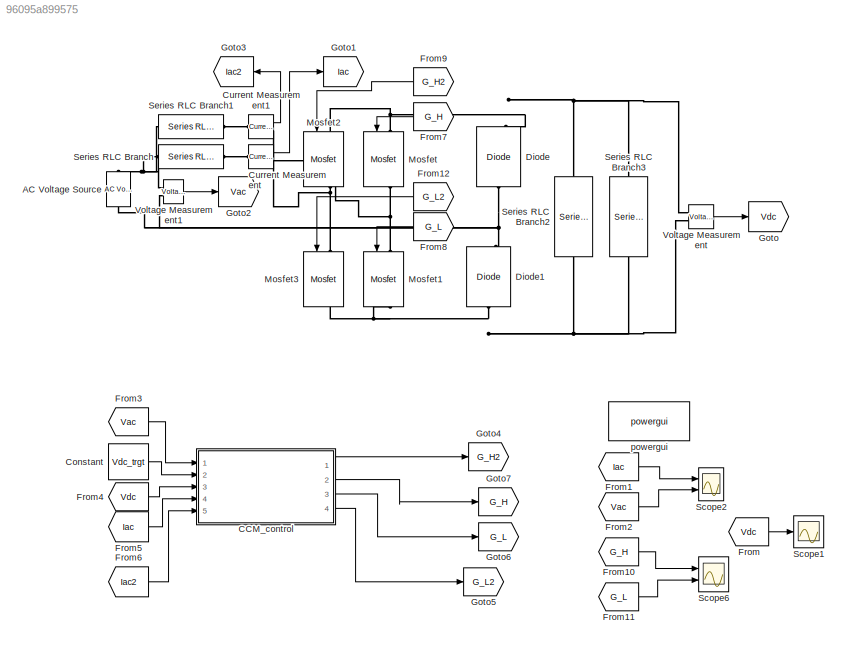
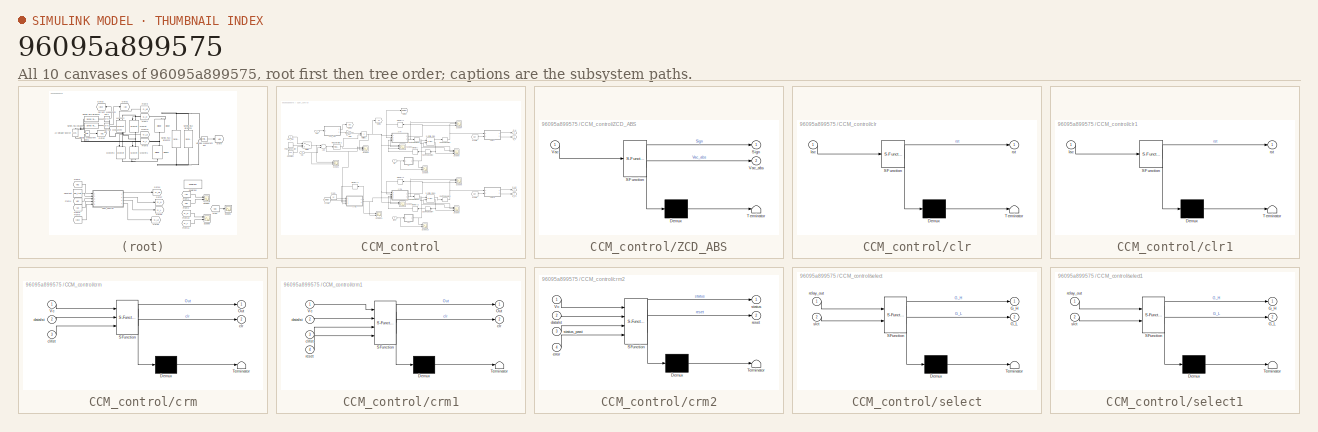
[diagram: thumbnail index - all 10 canvases of the model, root first then tree order]
MODEL slx_96095a899575
KIND model
CONFIG AbsTol = auto
CONFIG EnableMultiTasking = off
CONFIG FixedStep = auto
CONFIG MaxStep = 1e-4
CONFIG MinStep = auto
CONFIG RelTol = 1e-3
CONFIG SampleTimeConstraint = Unconstrained
CONFIG Solver = VariableStepAuto
CONFIG SolverName = VariableStepAuto
CONFIG StartTime = 0.0
CONFIG StopTime = 8
BLOCK [Reference] AC Voltage Source  REF=powerlib/Electrical
Sources/AC Voltage Source
  Ports = [0, 0, 0, 0, 0, 1, 1]
  SourceBlock = powerlib/Electrical\nSources/AC Voltage Source
  SourceProductBaseCode = PS
  SourceProductName = Simscape Electrical
  SourceType = AC Voltage Source
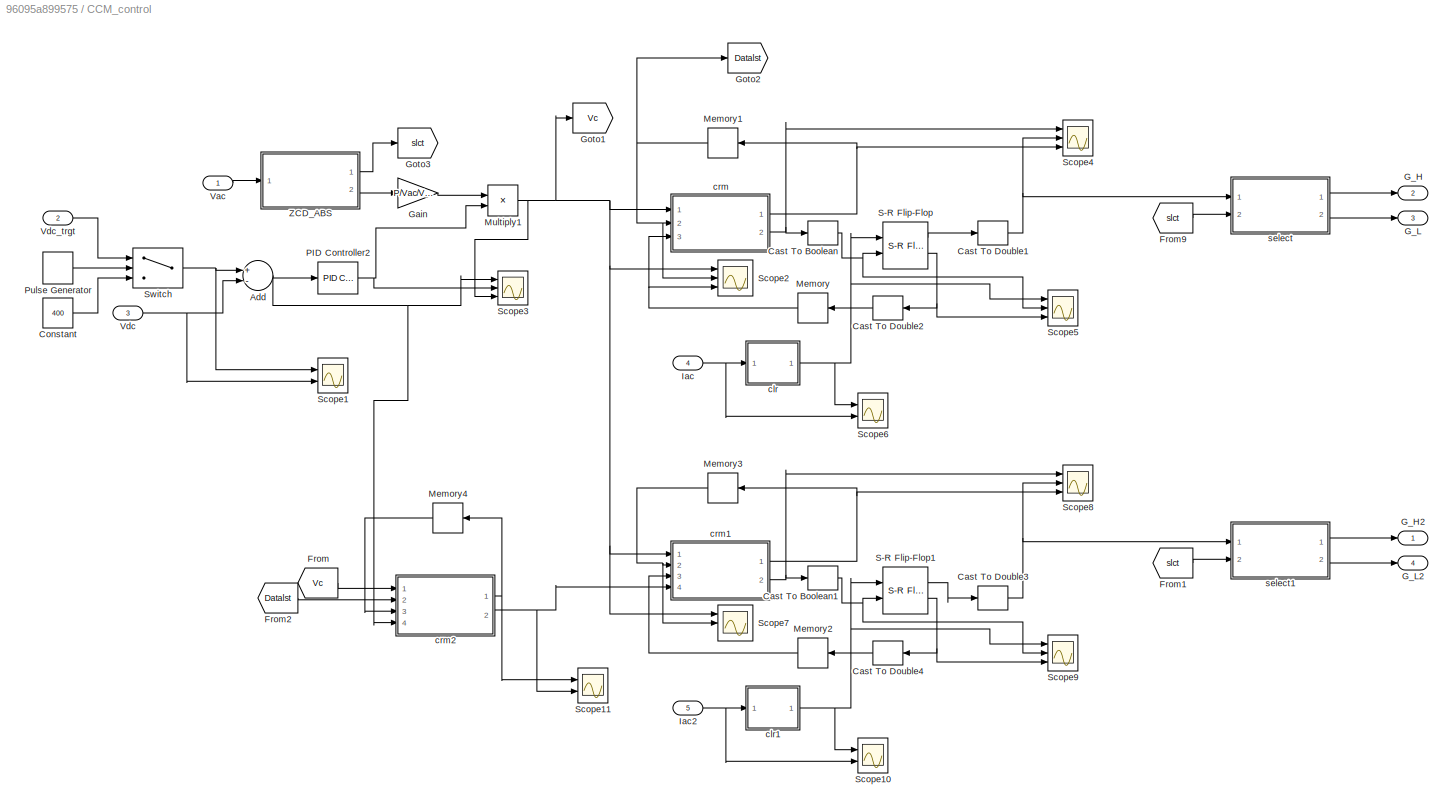
BLOCK [SubSystem] CCM_control
  Ports = [5, 4]
  RequestExecContextInheritance = off
BLOCK [Sum] CCM_control/Add
  InputSameDT = off
  Inputs = +-
  OutDataTypeStr = Inherit: Inherit via internal rule
  Ports = [2, 1]
  SaturateOnIntegerOverflow = off
BLOCK [DataTypeConversion] CCM_control/Cast To Boolean
  OutDataTypeStr = boolean
  RndMeth = Floor
  SaturateOnIntegerOverflow = off
BLOCK [DataTypeConversion] CCM_control/Cast To Boolean1
  OutDataTypeStr = boolean
  RndMeth = Floor
  SaturateOnIntegerOverflow = off
BLOCK [DataTypeConversion] CCM_control/Cast To Double1
  OutDataTypeStr = double
  RndMeth = Floor
  SaturateOnIntegerOverflow = off
BLOCK [DataTypeConversion] CCM_control/Cast To Double2
  OutDataTypeStr = double
  RndMeth = Floor
  SaturateOnIntegerOverflow = off
BLOCK [DataTypeConversion] CCM_control/Cast To Double3
  OutDataTypeStr = double
  RndMeth = Floor
  SaturateOnIntegerOverflow = off
BLOCK [DataTypeConversion] CCM_control/Cast To Double4
  OutDataTypeStr = double
  RndMeth = Floor
  SaturateOnIntegerOverflow = off
BLOCK [Constant] CCM_control/Constant
  Value = 400
BLOCK [From] CCM_control/From
  GotoTag = Vc
BLOCK [From] CCM_control/From1
  GotoTag = slct
BLOCK [From] CCM_control/From2
  GotoTag = Datalst
BLOCK [From] CCM_control/From9
  GotoTag = slct
BLOCK [Outport] CCM_control/G_H
  IconDisplay = Port number
  Port = 2
BLOCK [Outport] CCM_control/G_H2
  IconDisplay = Port number
BLOCK [Outport] CCM_control/G_L
  IconDisplay = Port number
  Port = 3
BLOCK [Outport] CCM_control/G_L2
  IconDisplay = Port number
  Port = 4
BLOCK [Gain] CCM_control/Gain
  Gain = P/Vac/Vac
  OutDataTypeStr = Inherit: Inherit via internal rule
  ParamDataTypeStr = Inherit: Inherit via internal rule
  SaturateOnIntegerOverflow = off
BLOCK [Goto] CCM_control/Goto1
  GotoTag = Vc
BLOCK [Goto] CCM_control/Goto2
  GotoTag = Datalst
BLOCK [Goto] CCM_control/Goto3
  GotoTag = slct
BLOCK [Inport] CCM_control/Iac
  IconDisplay = Port number
  Port = 4
BLOCK [Inport] CCM_control/Iac2
  IconDisplay = Port number
  Port = 5
BLOCK [Memory] CCM_control/Memory
BLOCK [Memory] CCM_control/Memory1
BLOCK [Memory] CCM_control/Memory2
BLOCK [Memory] CCM_control/Memory3
BLOCK [Memory] CCM_control/Memory4
BLOCK [Product] CCM_control/Multiply1
  InputSameDT = off
  OutDataTypeStr = Inherit: Inherit via internal rule
  Ports = [2, 1]
  RndMeth = Floor
  SaturateOnIntegerOverflow = off
BLOCK [Reference] CCM_control/PID Controller2  REF=simulink/Continuous/PID Controller
  Ports = [1, 1]
  SourceBlock = simulink/Continuous/PID Controller
  SourceProductBaseCode = SL
  SourceProductName = Simulink
  SourceType = PID 1dof
BLOCK [DiscretePulseGenerator] CCM_control/Pulse Generator
  Period = 4
  Ports = [0, 1]
  PulseType = Time based
  PulseWidth = 50
BLOCK [Reference] CCM_control/S-R Flip-Flop  REF=simulink_extras/Flip Flops/S-R
Flip-Flop
  Ports = [2, 2]
  SourceBlock = simulink_extras/Flip Flops/S-R\nFlip-Flop
  SourceProductBaseCode = SL
  SourceProductName = Simulink
  SourceType = SRFlipFlop
BLOCK [Reference] CCM_control/S-R Flip-Flop1  REF=simulink_extras/Flip Flops/S-R
Flip-Flop
  Ports = [2, 2]
  SourceBlock = simulink_extras/Flip Flops/S-R\nFlip-Flop
  SourceProductBaseCode = SL
  SourceProductName = Simulink
  SourceType = SRFlipFlop
BLOCK [Scope] CCM_control/Scope1
  Floating = off
  NumInputPorts = 2
  Ports = [2]
  ScopeSpecificationString = Simulink.scopes.TimeScopeBlockCfg('CurrentConfiguration', extmgr.ConfigurationSet(extmgr.Configuration('Core','General UI',true,'FigureColor',[1 1 1]),extmgr.Configuration('Core','Source UI',true),extmgr.Configuration('Sources','WiredSimulink',true,'DataLoggingVariableName','ScopeData1'),extmgr.Configuration('Visuals','Time Domain',true,'SerializedDisplays',{struct('MinYLimReal','0','MaxYLimReal',...<+2326ch>
BLOCK [Scope] CCM_control/Scope10
  Floating = off
  NumInputPorts = 2
  Ports = [2]
  ScopeSpecificationString = Simulink.scopes.TimeScopeBlockCfg('CurrentConfiguration', extmgr.ConfigurationSet(extmgr.Configuration('Core','General UI',true,'FigureColor',[1 1 1]),extmgr.Configuration('Core','Source UI',true),extmgr.Configuration('Sources','WiredSimulink',true,'DataLoggingVariableName','ScopeData2'),extmgr.Configuration('Visuals','Time Domain',true,'SerializedDisplays',{struct('MinYLimReal','-0.125','MaxYLimR...<+2682ch>
BLOCK [Scope] CCM_control/Scope11
  Floating = off
  NumInputPorts = 2
  Ports = [2]
  ScopeSpecificationString = Simulink.scopes.TimeScopeBlockCfg('CurrentConfiguration', extmgr.ConfigurationSet(extmgr.Configuration('Core','General UI',true,'FigureColor',[1 1 1]),extmgr.Configuration('Core','Source UI',true),extmgr.Configuration('Sources','WiredSimulink',true,'DataLoggingVariableName','ScopeData6'),extmgr.Configuration('Visuals','Time Domain',true,'SerializedDisplays',{struct('MinYLimReal','-0.125','MaxYLimR...<+2692ch>
BLOCK [Scope] CCM_control/Scope2
  Floating = off
  NumInputPorts = 3
  Ports = [3]
  ScopeSpecificationString = Simulink.scopes.TimeScopeBlockCfg('CurrentConfiguration', extmgr.ConfigurationSet(extmgr.Configuration('Core','General UI',true),extmgr.Configuration('Core','Source UI',true),extmgr.Configuration('Sources','WiredSimulink',true,'DataLoggingVariableName','ScopeData1'),extmgr.Configuration('Visuals','Time Domain',true,'SerializedDisplays',{struct('MinYLimReal','-36.9335','MaxYLimReal','75.27174','YLa...<+2754ch>
BLOCK [Scope] CCM_control/Scope3
  Floating = off
  NumInputPorts = 3
  Ports = [3]
  ScopeSpecificationString = Simulink.scopes.TimeScopeBlockCfg('CurrentConfiguration', extmgr.ConfigurationSet(extmgr.Configuration('Core','General UI',true),extmgr.Configuration('Core','Source UI',true),extmgr.Configuration('Sources','WiredSimulink',true,'DataLoggingVariableName','ScopeData3'),extmgr.Configuration('Visuals','Time Domain',true,'SerializedDisplays',{struct('MinYLimReal','-211.39017','MaxYLimReal','467.93224','...<+2842ch>
BLOCK [Scope] CCM_control/Scope4
  Floating = off
  NumInputPorts = 3
  Ports = [3]
  ScopeSpecificationString = Simulink.scopes.TimeScopeBlockCfg('CurrentConfiguration', extmgr.ConfigurationSet(extmgr.Configuration('Core','General UI',true),extmgr.Configuration('Core','Source UI',true),extmgr.Configuration('Sources','WiredSimulink',true,'DataLoggingVariableName','ScopeData4'),extmgr.Configuration('Visuals','Time Domain',true,'SerializedDisplays',{struct('MinYLimReal','-0.125','MaxYLimReal','1.125','YLabelRe...<+3084ch>
BLOCK [Scope] CCM_control/Scope5
  Floating = off
  NumInputPorts = 3
  Ports = [3]
  ScopeSpecificationString = Simulink.scopes.TimeScopeBlockCfg('CurrentConfiguration', extmgr.ConfigurationSet(extmgr.Configuration('Core','General UI',true),extmgr.Configuration('Core','Source UI',true),extmgr.Configuration('Sources','WiredSimulink',true,'DataLoggingVariableName','ScopeData2'),extmgr.Configuration('Visuals','Time Domain',true,'SerializedDisplays',{struct('MinYLimReal','-0.125','MaxYLimReal','1.125','YLabelRe...<+2774ch>
BLOCK [Scope] CCM_control/Scope6
  Floating = off
  NumInputPorts = 2
  Ports = [2]
  ScopeSpecificationString = Simulink.scopes.TimeScopeBlockCfg('CurrentConfiguration', extmgr.ConfigurationSet(extmgr.Configuration('Core','General UI',true,'FigureColor',[1 1 1]),extmgr.Configuration('Core','Source UI',true),extmgr.Configuration('Sources','WiredSimulink',true,'DataLoggingVariableName','ScopeData1'),extmgr.Configuration('Visuals','Time Domain',true,'SerializedDisplays',{struct('MinYLimReal','-0.125','MaxYLimR...<+2680ch>
BLOCK [Scope] CCM_control/Scope7
  Floating = off
  NumInputPorts = 3
  Ports = [3]
  ScopeSpecificationString = Simulink.scopes.TimeScopeBlockCfg('CurrentConfiguration', extmgr.ConfigurationSet(extmgr.Configuration('Core','General UI',true),extmgr.Configuration('Core','Source UI',true),extmgr.Configuration('Sources','WiredSimulink',true,'DataLoggingVariableName','ScopeData3'),extmgr.Configuration('Visuals','Time Domain',true,'SerializedDisplays',{struct('MinYLimReal','-36.9335','MaxYLimReal','75.27174','YLa...<+2757ch>
BLOCK [Scope] CCM_control/Scope8
  Floating = off
  NumInputPorts = 3
  Ports = [3]
  ScopeSpecificationString = Simulink.scopes.TimeScopeBlockCfg('CurrentConfiguration', extmgr.ConfigurationSet(extmgr.Configuration('Core','General UI',true),extmgr.Configuration('Core','Source UI',true),extmgr.Configuration('Sources','WiredSimulink',true,'DataLoggingVariableName','ScopeData4'),extmgr.Configuration('Visuals','Time Domain',true,'SerializedDisplays',{struct('MinYLimReal','-0.125','MaxYLimReal','1.125','YLabelRe...<+3086ch>
BLOCK [Scope] CCM_control/Scope9
  Floating = off
  NumInputPorts = 3
  Ports = [3]
  ScopeSpecificationString = Simulink.scopes.TimeScopeBlockCfg('CurrentConfiguration', extmgr.ConfigurationSet(extmgr.Configuration('Core','General UI',true),extmgr.Configuration('Core','Source UI',true),extmgr.Configuration('Sources','WiredSimulink',true,'DataLoggingVariableName','ScopeData5'),extmgr.Configuration('Visuals','Time Domain',true,'SerializedDisplays',{struct('MinYLimReal','-0.125','MaxYLimReal','1.125','YLabelRe...<+2777ch>
BLOCK [Switch] CCM_control/Switch
  Criteria = u2 > Threshold
  InputSameDT = off
  SaturateOnIntegerOverflow = off
BLOCK [Inport] CCM_control/Vac
  IconDisplay = Port number
BLOCK [Inport] CCM_control/Vdc
  IconDisplay = Port number
  Port = 3
BLOCK [Inport] CCM_control/Vdc_trgt
  IconDisplay = Port number
  Port = 2
BLOCK [SubSystem] CCM_control/ZCD_ABS
  ErrorFcn = Stateflow.Translate.translate
  PermitHierarchicalResolution = ExplicitOnly
  Ports = [1, 2]
  RequestExecContextInheritance = off
  SFBlockType = MATLAB Function
  TreatAsAtomicUnit = on
BLOCK [Demux] CCM_control/ZCD_ABS/ Demux 
  Outputs = 1
  Ports = [1, 1]
BLOCK [S-Function] CCM_control/ZCD_ABS/ SFunction 
  EnableBusSupport = on
  FunctionName = sf_sfun
  PortCounts = [1 3]
  Ports = [1, 3]
  SFcnIsStateOwnerBlock = off
  SFunctionDeploymentMode = off
  Tag = Stateflow S-Function PFC 2
BLOCK [Terminator] CCM_control/ZCD_ABS/ Terminator 
BLOCK [Outport] CCM_control/ZCD_ABS/Sign
  IconDisplay = Port number
BLOCK [Inport] CCM_control/ZCD_ABS/Vac
  IconDisplay = Port number
BLOCK [Outport] CCM_control/ZCD_ABS/Vac_abs
  IconDisplay = Port number
  Port = 2
BLOCK [SubSystem] CCM_control/clr
  ErrorFcn = Stateflow.Translate.translate
  PermitHierarchicalResolution = ExplicitOnly
  Ports = [1, 1]
  RequestExecContextInheritance = off
  SFBlockType = MATLAB Function
  TreatAsAtomicUnit = on
BLOCK [Demux] CCM_control/clr/ Demux 
  Outputs = 1
  Ports = [1, 1]
BLOCK [S-Function] CCM_control/clr/ SFunction 
  EnableBusSupport = on
  FunctionName = sf_sfun
  PortCounts = [1 2]
  Ports = [1, 2]
  SFcnIsStateOwnerBlock = off
  SFunctionDeploymentMode = off
  Tag = Stateflow S-Function PFC 4
BLOCK [Terminator] CCM_control/clr/ Terminator 
BLOCK [Inport] CCM_control/clr/Iac
  IconDisplay = Port number
BLOCK [Outport] CCM_control/clr/rst
  IconDisplay = Port number
BLOCK [SubSystem] CCM_control/clr1
  ErrorFcn = Stateflow.Translate.translate
  PermitHierarchicalResolution = ExplicitOnly
  Ports = [1, 1]
  RequestExecContextInheritance = off
  SFBlockType = MATLAB Function
  TreatAsAtomicUnit = on
BLOCK [Demux] CCM_control/clr1/ Demux 
  Outputs = 1
  Ports = [1, 1]
BLOCK [S-Function] CCM_control/clr1/ SFunction 
  EnableBusSupport = on
  FunctionName = sf_sfun
  PortCounts = [1 2]
  Ports = [1, 2]
  SFcnIsStateOwnerBlock = off
  SFunctionDeploymentMode = off
  Tag = Stateflow S-Function PFC 5
BLOCK [Terminator] CCM_control/clr1/ Terminator 
BLOCK [Inport] CCM_control/clr1/Iac
  IconDisplay = Port number
BLOCK [Outport] CCM_control/clr1/rst
  IconDisplay = Port number
BLOCK [SubSystem] CCM_control/crm
  ErrorFcn = Stateflow.Translate.translate
  PermitHierarchicalResolution = ExplicitOnly
  Ports = [3, 2]
  RequestExecContextInheritance = off
  SFBlockType = MATLAB Function
  TreatAsAtomicUnit = on
BLOCK [Demux] CCM_control/crm/ Demux 
  Outputs = 1
  Ports = [1, 1]
BLOCK [S-Function] CCM_control/crm/ SFunction 
  EnableBusSupport = on
  FunctionName = sf_sfun
  PortCounts = [3 3]
  Ports = [3, 3]
  SFcnIsStateOwnerBlock = off
  SFunctionDeploymentMode = off
  Tag = Stateflow S-Function PFC 3
BLOCK [Terminator] CCM_control/crm/ Terminator 
BLOCK [Outport] CCM_control/crm/Out
  IconDisplay = Port number
BLOCK [Inport] CCM_control/crm/Vc
  IconDisplay = Port number
BLOCK [Outport] CCM_control/crm/clr
  IconDisplay = Port number
  Port = 2
BLOCK [Inport] CCM_control/crm/clrlst
  IconDisplay = Port number
  Port = 3
BLOCK [Inport] CCM_control/crm/datalst
  IconDisplay = Port number
  Port = 2
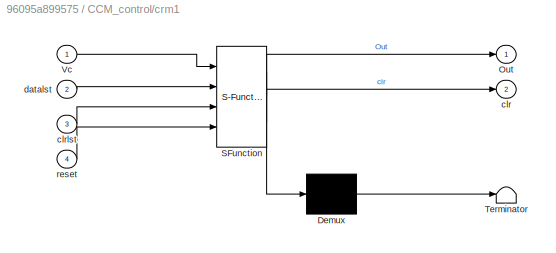
BLOCK [SubSystem] CCM_control/crm1
  ErrorFcn = Stateflow.Translate.translate
  PermitHierarchicalResolution = ExplicitOnly
  Ports = [4, 2]
  RequestExecContextInheritance = off
  SFBlockType = MATLAB Function
  TreatAsAtomicUnit = on
BLOCK [Demux] CCM_control/crm1/ Demux 
  Outputs = 1
  Ports = [1, 1]
BLOCK [S-Function] CCM_control/crm1/ SFunction 
  EnableBusSupport = on
  FunctionName = sf_sfun
  PortCounts = [4 3]
  Ports = [4, 3]
  SFcnIsStateOwnerBlock = off
  SFunctionDeploymentMode = off
  Tag = Stateflow S-Function PFC 6
BLOCK [Terminator] CCM_control/crm1/ Terminator 
BLOCK [Outport] CCM_control/crm1/Out
  IconDisplay = Port number
BLOCK [Inport] CCM_control/crm1/Vc
  IconDisplay = Port number
BLOCK [Outport] CCM_control/crm1/clr
  IconDisplay = Port number
  Port = 2
BLOCK [Inport] CCM_control/crm1/clrlst
  IconDisplay = Port number
  Port = 3
BLOCK [Inport] CCM_control/crm1/datalst
  IconDisplay = Port number
  Port = 2
BLOCK [Inport] CCM_control/crm1/reset
  IconDisplay = Port number
  Port = 4
BLOCK [SubSystem] CCM_control/crm2
  ErrorFcn = Stateflow.Translate.translate
  PermitHierarchicalResolution = ExplicitOnly
  Ports = [4, 2]
  RequestExecContextInheritance = off
  SFBlockType = MATLAB Function
  TreatAsAtomicUnit = on
BLOCK [Demux] CCM_control/crm2/ Demux 
  Outputs = 1
  Ports = [1, 1]
BLOCK [S-Function] CCM_control/crm2/ SFunction 
  EnableBusSupport = on
  FunctionName = sf_sfun
  PortCounts = [4 3]
  Ports = [4, 3]
  SFcnIsStateOwnerBlock = off
  SFunctionDeploymentMode = off
  Tag = Stateflow S-Function PFC 8
BLOCK [Terminator] CCM_control/crm2/ Terminator 
BLOCK [Inport] CCM_control/crm2/Vc
  IconDisplay = Port number
BLOCK [Inport] CCM_control/crm2/datalst
  IconDisplay = Port number
  Port = 2
BLOCK [Inport] CCM_control/crm2/error
  IconDisplay = Port number
  Port = 4
BLOCK [Outport] CCM_control/crm2/reset
  IconDisplay = Port number
  Port = 2
BLOCK [Outport] CCM_control/crm2/status
  IconDisplay = Port number
BLOCK [Inport] CCM_control/crm2/status_past
  IconDisplay = Port number
  Port = 3
BLOCK [SubSystem] CCM_control/select
  ErrorFcn = Stateflow.Translate.translate
  PermitHierarchicalResolution = ExplicitOnly
  Ports = [2, 2]
  RequestExecContextInheritance = off
  SFBlockType = MATLAB Function
  TreatAsAtomicUnit = on
BLOCK [Demux] CCM_control/select/ Demux 
  Outputs = 1
  Ports = [1, 1]
BLOCK [S-Function] CCM_control/select/ SFunction 
  EnableBusSupport = on
  FunctionName = sf_sfun
  PortCounts = [2 3]
  Ports = [2, 3]
  SFcnIsStateOwnerBlock = off
  SFunctionDeploymentMode = off
  Tag = Stateflow S-Function PFC 1
BLOCK [Terminator] CCM_control/select/ Terminator 
BLOCK [Outport] CCM_control/select/G_H
  IconDisplay = Port number
BLOCK [Outport] CCM_control/select/G_L
  IconDisplay = Port number
  Port = 2
BLOCK [Inport] CCM_control/select/relay_out
  IconDisplay = Port number
BLOCK [Inport] CCM_control/select/slct
  IconDisplay = Port number
  Port = 2
BLOCK [SubSystem] CCM_control/select1
  ErrorFcn = Stateflow.Translate.translate
  PermitHierarchicalResolution = ExplicitOnly
  Ports = [2, 2]
  RequestExecContextInheritance = off
  SFBlockType = MATLAB Function
  TreatAsAtomicUnit = on
BLOCK [Demux] CCM_control/select1/ Demux 
  Outputs = 1
  Ports = [1, 1]
BLOCK [S-Function] CCM_control/select1/ SFunction 
  EnableBusSupport = on
  FunctionName = sf_sfun
  PortCounts = [2 3]
  Ports = [2, 3]
  SFcnIsStateOwnerBlock = off
  SFunctionDeploymentMode = off
  Tag = Stateflow S-Function PFC 7
BLOCK [Terminator] CCM_control/select1/ Terminator 
BLOCK [Outport] CCM_control/select1/G_H
  IconDisplay = Port number
BLOCK [Outport] CCM_control/select1/G_L
  IconDisplay = Port number
  Port = 2
BLOCK [Inport] CCM_control/select1/relay_out
  IconDisplay = Port number
BLOCK [Inport] CCM_control/select1/slct
  IconDisplay = Port number
  Port = 2
BLOCK [Constant] Constant
  Value = Vdc_trgt
BLOCK [Reference] Current Measurement  REF=powerlib/Measurements/Current Measurement
  Ports = [0, 1, 0, 0, 0, 1, 1]
  SourceBlock = powerlib/Measurements/Current Measurement
  SourceProductBaseCode = PS
  SourceProductName = Simscape Power Systems
  SourceType = Current Measurement
  UserDataPersistent = on
BLOCK [Reference] Current Measurement1  REF=powerlib/Measurements/Current Measurement
  Ports = [0, 1, 0, 0, 0, 1, 1]
  SourceBlock = powerlib/Measurements/Current Measurement
  SourceProductBaseCode = PS
  SourceProductName = Simscape Power Systems
  SourceType = Current Measurement
  UserDataPersistent = on
BLOCK [Reference] Diode  REF=powerlib/Power
Electronics/Diode
  Ports = [0, 1, 0, 0, 0, 1, 1]
  SourceBlock = powerlib/Power\nElectronics/Diode
  SourceProductBaseCode = PS
  SourceProductName = Simscape Electrical
  SourceType = Diode
BLOCK [Reference] Diode1  REF=powerlib/Power
Electronics/Diode
  Ports = [0, 1, 0, 0, 0, 1, 1]
  SourceBlock = powerlib/Power\nElectronics/Diode
  SourceProductBaseCode = PS
  SourceProductName = Simscape Electrical
  SourceType = Diode
BLOCK [From] From
  GotoTag = Vdc
BLOCK [From] From1
  GotoTag = Iac
BLOCK [From] From10
  GotoTag = G_H
BLOCK [From] From11
  GotoTag = G_L
BLOCK [From] From12
  GotoTag = G_L2
BLOCK [From] From2
  GotoTag = Vac
BLOCK [From] From3
  GotoTag = Vac
BLOCK [From] From4
  GotoTag = Vdc
BLOCK [From] From5
  GotoTag = Iac
BLOCK [From] From6
  GotoTag = Iac2
BLOCK [From] From7
  GotoTag = G_H
BLOCK [From] From8
  GotoTag = G_L
BLOCK [From] From9
  GotoTag = G_H2
BLOCK [Goto] Goto
  GotoTag = Vdc
BLOCK [Goto] Goto1
  GotoTag = Iac
BLOCK [Goto] Goto2
  GotoTag = Vac
BLOCK [Goto] Goto3
  GotoTag = Iac2
BLOCK [Goto] Goto4
  GotoTag = G_H2
BLOCK [Goto] Goto5
  GotoTag = G_L2
BLOCK [Goto] Goto6
  GotoTag = G_L
BLOCK [Goto] Goto7
  GotoTag = G_H
BLOCK [Reference] Mosfet  REF=powerlib/Power
Electronics/Mosfet
  Ports = [1, 1, 0, 0, 0, 1, 1]
  SourceBlock = powerlib/Power\nElectronics/Mosfet
  SourceProductBaseCode = PS
  SourceProductName = Simscape Electrical
  SourceType = Mosfet
BLOCK [Reference] Mosfet1  REF=powerlib/Power
Electronics/Mosfet
  Ports = [1, 1, 0, 0, 0, 1, 1]
  SourceBlock = powerlib/Power\nElectronics/Mosfet
  SourceProductBaseCode = PS
  SourceProductName = Simscape Electrical
  SourceType = Mosfet
BLOCK [Reference] Mosfet2  REF=powerlib/Power
Electronics/Mosfet
  Ports = [1, 1, 0, 0, 0, 1, 1]
  SourceBlock = powerlib/Power\nElectronics/Mosfet
  SourceProductBaseCode = PS
  SourceProductName = Simscape Electrical
  SourceType = Mosfet
BLOCK [Reference] Mosfet3  REF=powerlib/Power
Electronics/Mosfet
  Ports = [1, 1, 0, 0, 0, 1, 1]
  SourceBlock = powerlib/Power\nElectronics/Mosfet
  SourceProductBaseCode = PS
  SourceProductName = Simscape Electrical
  SourceType = Mosfet
BLOCK [Scope] Scope1
  Floating = off
  NumInputPorts = 1
  Ports = [1]
  ScopeSpecificationString = Simulink.scopes.TimeScopeBlockCfg('CurrentConfiguration', extmgr.ConfigurationSet(extmgr.Configuration('Core','General UI',true,'FigureColor',[1 1 1]),extmgr.Configuration('Core','Source UI',true),extmgr.Configuration('Sources','WiredSimulink',true,'DataLoggingVariableName','ScopeData1'),extmgr.Configuration('Visuals','Time Domain',true,'SerializedDisplays',{struct('MinYLimReal','-111.95109','MaxY...<+1714ch>
BLOCK [Scope] Scope2
  Floating = off
  NumInputPorts = 2
  Ports = [2]
  ScopeSpecificationString = Simulink.scopes.TimeScopeBlockCfg('CurrentConfiguration', extmgr.ConfigurationSet(extmgr.Configuration('Core','General UI',true),extmgr.Configuration('Core','Source UI',true),extmgr.Configuration('Sources','WiredSimulink',true,'DataLoggingVariableName','ScopeData2'),extmgr.Configuration('Visuals','Time Domain',true,'SerializedDisplays',{struct('MinYLimReal','-20.79764','MaxYLimReal','20.38333','YL...<+2171ch>
BLOCK [Scope] Scope6
  Floating = off
  NumInputPorts = 2
  Ports = [2]
  ScopeSpecificationString = Simulink.scopes.TimeScopeBlockCfg('CurrentConfiguration', extmgr.ConfigurationSet(extmgr.Configuration('Core','General UI',true),extmgr.Configuration('Core','Source UI',true),extmgr.Configuration('Sources','WiredSimulink',true,'DataLoggingVariableName','ScopeData6'),extmgr.Configuration('Visuals','Time Domain',true,'SerializedDisplays',{struct('MinYLimReal','-0.125','MaxYLimReal','1.125','YLabelRe...<+2052ch>
BLOCK [Reference] Series RLC Branch  REF=powerlib/Elements/Series RLC Branch
  Ports = [0, 0, 0, 0, 0, 1, 1]
  SourceBlock = powerlib/Elements/Series RLC Branch
  SourceProductBaseCode = PS
  SourceProductName = Simscape Electrical
  SourceType = Series RLC Branch
BLOCK [Reference] Series RLC Branch1  REF=powerlib/Elements/Series RLC Branch
  Ports = [0, 0, 0, 0, 0, 1, 1]
  SourceBlock = powerlib/Elements/Series RLC Branch
  SourceProductBaseCode = PS
  SourceProductName = Simscape Electrical
  SourceType = Series RLC Branch
BLOCK [Reference] Series RLC Branch2  REF=powerlib/Elements/Series RLC Branch
  Ports = [0, 0, 0, 0, 0, 1, 1]
  SourceBlock = powerlib/Elements/Series RLC Branch
  SourceProductBaseCode = PS
  SourceProductName = Simscape Electrical
  SourceType = Series RLC Branch
BLOCK [Reference] Series RLC Branch3  REF=powerlib/Elements/Series RLC Branch
  Ports = [0, 0, 0, 0, 0, 1, 1]
  SourceBlock = powerlib/Elements/Series RLC Branch
  SourceProductBaseCode = PS
  SourceProductName = Simscape Electrical
  SourceType = Series RLC Branch
BLOCK [Reference] Voltage Measurement  REF=powerlib/Measurements/Voltage Measurement
  Ports = [0, 1, 0, 0, 0, 2]
  SourceBlock = powerlib/Measurements/Voltage Measurement
  SourceProductBaseCode = PS
  SourceProductName = Simscape Power Systems
  SourceType = Voltage Measurement
  UserDataPersistent = on
BLOCK [Reference] Voltage Measurement1  REF=powerlib/Measurements/Voltage Measurement
  Ports = [0, 1, 0, 0, 0, 2]
  SourceBlock = powerlib/Measurements/Voltage Measurement
  SourceProductBaseCode = PS
  SourceProductName = Simscape Power Systems
  SourceType = Voltage Measurement
  UserDataPersistent = on
BLOCK [Reference] powergui  REF=powerlib/powergui
  Ports = []
  Priority = 1
  SourceBlock = powerlib/powergui
  SourceProductBaseCode = PS
  SourceProductName = Simscape Power Systems
  SourceType = PSB option menu block
NET CCM_control/Add:1 -> CCM_control/PID Controller2:1, CCM_control/Scope3:1, CCM_control/crm2:4
NET CCM_control/Cast To Boolean1:1 -> CCM_control/S-R Flip-Flop1:2, CCM_control/Scope9:2
NET CCM_control/Cast To Boolean:1 -> CCM_control/S-R Flip-Flop:2, CCM_control/Scope5:2
NET CCM_control/Cast To Double1:1 -> CCM_control/Scope4:2, CCM_control/select:1
LINE CCM_control/Cast To Double2:1 -> CCM_control/Memory:1
NET CCM_control/Cast To Double3:1 -> CCM_control/Scope8:2, CCM_control/select1:1
LINE CCM_control/Cast To Double4:1 -> CCM_control/Memory2:1
LINE CCM_control/Constant:1 -> CCM_control/Switch:3
LINE CCM_control/From1:1 -> CCM_control/select1:2
LINE CCM_control/From2:1 -> CCM_control/crm2:2
LINE CCM_control/From9:1 -> CCM_control/select:2
LINE CCM_control/From:1 -> CCM_control/crm2:1
LINE CCM_control/Gain:1 -> CCM_control/Multiply1:1
NET CCM_control/Iac2:1 -> CCM_control/Scope10:2, CCM_control/clr1:1
NET CCM_control/Iac:1 -> CCM_control/Scope6:2, CCM_control/clr:1
NET CCM_control/Memory1:1 -> CCM_control/Goto2:1, CCM_control/Scope2:2, CCM_control/crm:2
LINE CCM_control/Memory2:1 -> CCM_control/crm1:3
NET CCM_control/Memory3:1 -> CCM_control/Scope7:2, CCM_control/crm1:2
LINE CCM_control/Memory4:1 -> CCM_control/crm2:3
NET CCM_control/Memory:1 -> CCM_control/Scope2:3, CCM_control/crm:3
NET CCM_control/Multiply1:1 -> CCM_control/Goto1:1, CCM_control/Scope2:1, CCM_control/Scope3:3, CCM_control/Scope7:1, CCM_control/crm1:1, CCM_control/crm:1
NET CCM_control/PID Controller2:1 -> CCM_control/Multiply1:2, CCM_control/Scope3:2
LINE CCM_control/Pulse Generator:1 -> CCM_control/Switch:2
LINE CCM_control/S-R Flip-Flop1:1 -> CCM_control/Cast To Double3:1
NET CCM_control/S-R Flip-Flop1:2 -> CCM_control/Cast To Double4:1, CCM_control/Scope9:3
LINE CCM_control/S-R Flip-Flop:1 -> CCM_control/Cast To Double1:1
NET CCM_control/S-R Flip-Flop:2 -> CCM_control/Cast To Double2:1, CCM_control/Scope5:3
NET CCM_control/Switch:1 -> CCM_control/Add:1, CCM_control/Scope1:1
LINE CCM_control/Vac:1 -> CCM_control/ZCD_ABS:1
NET CCM_control/Vdc:1 -> CCM_control/Add:2, CCM_control/Scope1:2
LINE CCM_control/Vdc_trgt:1 -> CCM_control/Switch:1
LINE CCM_control/ZCD_ABS:1 -> CCM_control/Goto3:1
LINE CCM_control/ZCD_ABS:2 -> CCM_control/Gain:1
NET CCM_control/clr1:1 -> CCM_control/S-R Flip-Flop1:1, CCM_control/Scope10:1, CCM_control/Scope9:1
NET CCM_control/clr:1 -> CCM_control/S-R Flip-Flop:1, CCM_control/Scope5:1, CCM_control/Scope6:1
NET CCM_control/crm1:1 -> CCM_control/Memory3:1, CCM_control/Scope8:3
NET CCM_control/crm1:2 -> CCM_control/Cast To Boolean1:1, CCM_control/Scope8:1
NET CCM_control/crm2:1 -> CCM_control/Memory4:1, CCM_control/Scope11:1
NET CCM_control/crm2:2 -> CCM_control/Scope11:2, CCM_control/crm1:4
NET CCM_control/crm:1 -> CCM_control/Memory1:1, CCM_control/Scope4:3
NET CCM_control/crm:2 -> CCM_control/Cast To Boolean:1, CCM_control/Scope4:1
LINE CCM_control/select1:1 -> CCM_control/G_H2:1
LINE CCM_control/select1:2 -> CCM_control/G_L2:1
LINE CCM_control/select:1 -> CCM_control/G_H:1
LINE CCM_control/select:2 -> CCM_control/G_L:1
LINE CCM_control:1 -> Goto4:1
LINE CCM_control:2 -> Goto7:1
LINE CCM_control:3 -> Goto6:1
LINE CCM_control:4 -> Goto5:1
LINE Constant:1 -> CCM_control:2
LINE Current Measurement1:1 -> Goto3:1
LINE Current Measurement:1 -> Goto1:1
LINE From10:1 -> Scope6:1
LINE From11:1 -> Scope6:2
LINE From12:1 -> Mosfet3:1
LINE From1:1 -> Scope2:1
LINE From2:1 -> Scope2:2
LINE From3:1 -> CCM_control:1
LINE From4:1 -> CCM_control:3
LINE From5:1 -> CCM_control:4
LINE From6:1 -> CCM_control:5
LINE From7:1 -> Mosfet:1
LINE From8:1 -> Mosfet1:1
LINE From9:1 -> Mosfet2:1
LINE From:1 -> Scope1:1
LINE Voltage Measurement1:1 -> Goto2:1
LINE Voltage Measurement:1 -> Goto:1
PNET net1: AC Voltage Source:LConn1 -- Diode1:RConn1 -- Diode:LConn1 -- Voltage Measurement1:LConn2
PNET net2: AC Voltage Source:RConn1 -- Series RLC Branch1:LConn1 -- Series RLC Branch:LConn1 -- Voltage Measurement1:LConn1
PLINE Current Measurement1:LConn1 -- Series RLC Branch1:RConn1
PNET net3: Current Measurement1:RConn1 -- Mosfet2:RConn1 -- Mosfet3:LConn1
PLINE Current Measurement:LConn1 -- Series RLC Branch:RConn1
PNET net4: Current Measurement:RConn1 -- Mosfet1:LConn1 -- Mosfet:RConn1
PNET net5: Diode1:LConn1 -- Mosfet1:RConn1 -- Mosfet3:RConn1 -- Series RLC Branch2:RConn1 -- Series RLC Branch3:RConn1 -- Voltage Measurement:LConn2
PNET net6: Diode:RConn1 -- Mosfet2:LConn1 -- Mosfet:LConn1 -- Series RLC Branch2:LConn1 -- Series RLC Branch3:LConn1 -- Voltage Measurement:LConn1
note: NET lines group one-source signal fan-out (src -> all destinations, sorted); 1:1 wires keep LINE; PNET lines group multi-terminal physical nets as a canonical sorted terminal list (undirected conserving connections); 2-terminal nets keep the pairwise PLINE form
CHART CCM_control/select states=1 transitions=1
  STATE_LABEL 'eML_blk_kernel()'
  STATE_LABEL 'SCRIPT:\nfunction [G_H, G_L] = fcn(relay_out, slct)\n\n\nif slct>0.5\n    G_L = relay_out;\n    G_H = 1-relay_out;\nelseif slct<=-0.5\n    G_L = 1-relay_out;\n    G_H = relay_out; \nelse\n    G_L = 0;\n    G_H = 0; \nend    \nend'
CHART CCM_control/ZCD_ABS states=1 transitions=1
  STATE_LABEL 'eML_blk_kernel()'
  STATE_LABEL 'SCRIPT:\nfunction [Sign, Vac_abs] = fcn(Vac)\nVac_abs = abs(Vac);\nSign = sign(Vac);\nend'
CHART CCM_control/crm states=1 transitions=1
  STATE_LABEL 'eML_blk_kernel()'
  STATE_LABEL 'SCRIPT:\nfunction [Out, clr] = fcn(Vc, datalst, clrlst)\nif Vc <= datalst\n    clr = 1;\nelse\n    clr = 0;\nend\n%clr = bool(clr);\nif clrlst == 1\n    Out = 0;\nelse\n    Out = datalst + 0.1;\nend\n\nend'
CHART CCM_control/clr states=1 transitions=1
  STATE_LABEL 'eML_blk_kernel()'
  STATE_LABEL 'SCRIPT:\nfunction rst = fcn(Iac)\ntemp = abs(Iac);\nrst = (temp < 0.1);\nend'
CHART CCM_control/clr1 states=1 transitions=1
  STATE_LABEL 'eML_blk_kernel()'
  STATE_LABEL 'SCRIPT:\nfunction rst = fcn(Iac)\ntemp = abs(Iac);\nrst = (temp < 0.1);\nend'
CHART CCM_control/crm1 states=1 transitions=1
  STATE_LABEL 'eML_blk_kernel()'
  STATE_LABEL 'SCRIPT:\nfunction [Out, clr] = fcn(Vc, datalst, clrlst, reset)\nif reset == 1\n    Out = 0;\n    clr = 0;\nelse\n    if Vc <= datalst\n        clr = 1;\n    else\n        clr = 0;\n    end\n    %clr = bool(clr);\n    if clrlst == 1\n        Out = 0;\n    else\n        Out = datalst + 0.1;\n    end\nend\nend'
CHART CCM_control/select1 states=1 transitions=1
  STATE_LABEL 'eML_blk_kernel()'
  STATE_LABEL 'SCRIPT:\nfunction [G_H, G_L] = fcn(relay_out, slct)\n\n\nif slct>0.5\n    G_L = relay_out;\n    G_H = 1-relay_out;\nelseif slct<=-0.5\n    G_L = 1-relay_out;\n    G_H = relay_out; \nelse\n    G_L = 0;\n    G_H = 0; \nend    \nend'
CHART CCM_control/crm2 states=1 transitions=1
  STATE_LABEL 'eML_blk_kernel()'
  STATE_LABEL 'SCRIPT:\nfunction [status, reset] = fcn(Vc, datalst, status_past, error)\nError = abs(error);\nif (datalst < 0.7*Vc|| Error > 10) && status_past==0\n    status = 0;\nelse\n    status = 1;\nend\nreset = 1-status;\nend'
